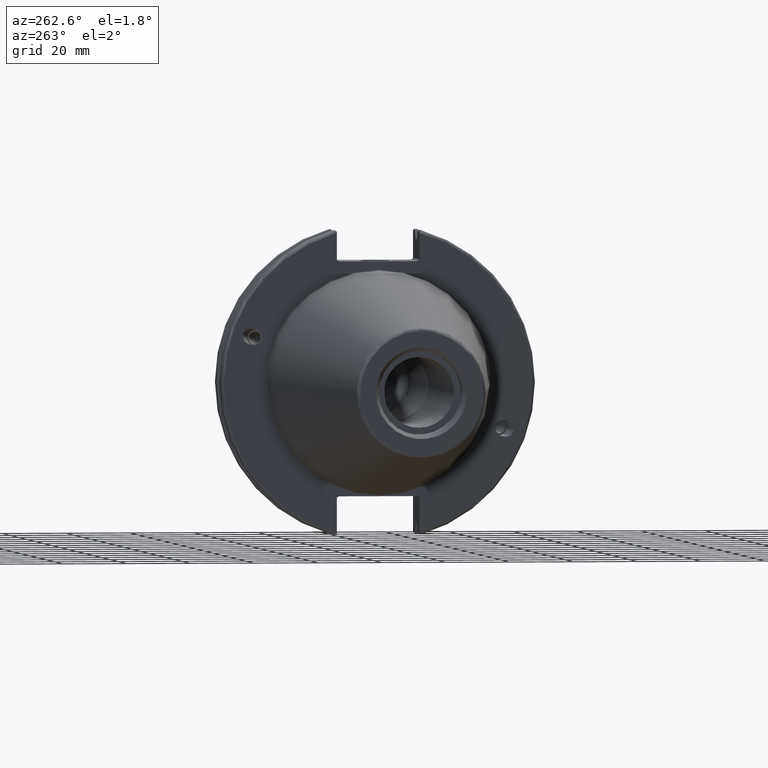
[diagram: clean part render]
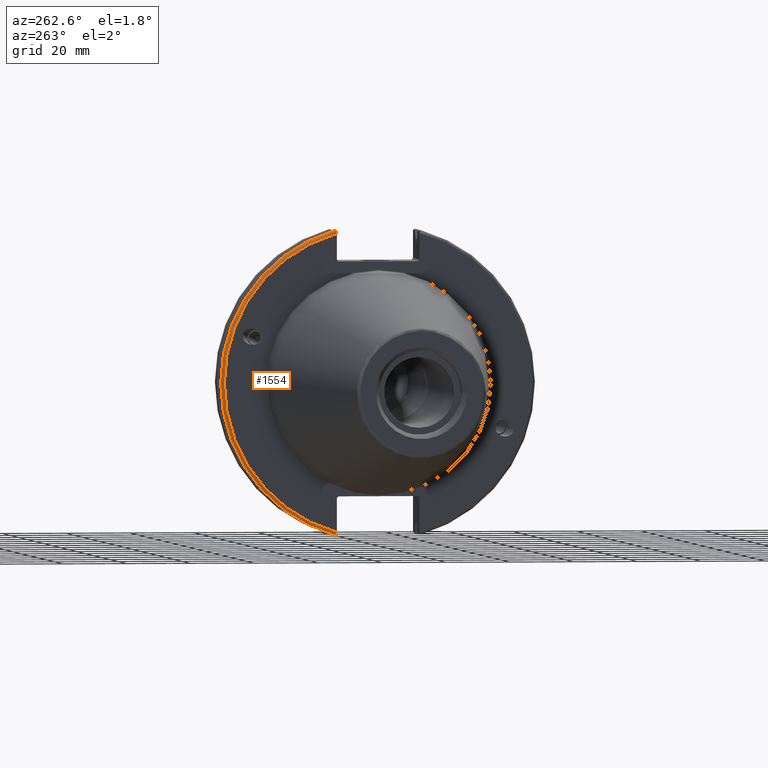
[diagram: same view with one face highlighted and labeled with its STEP entity id]
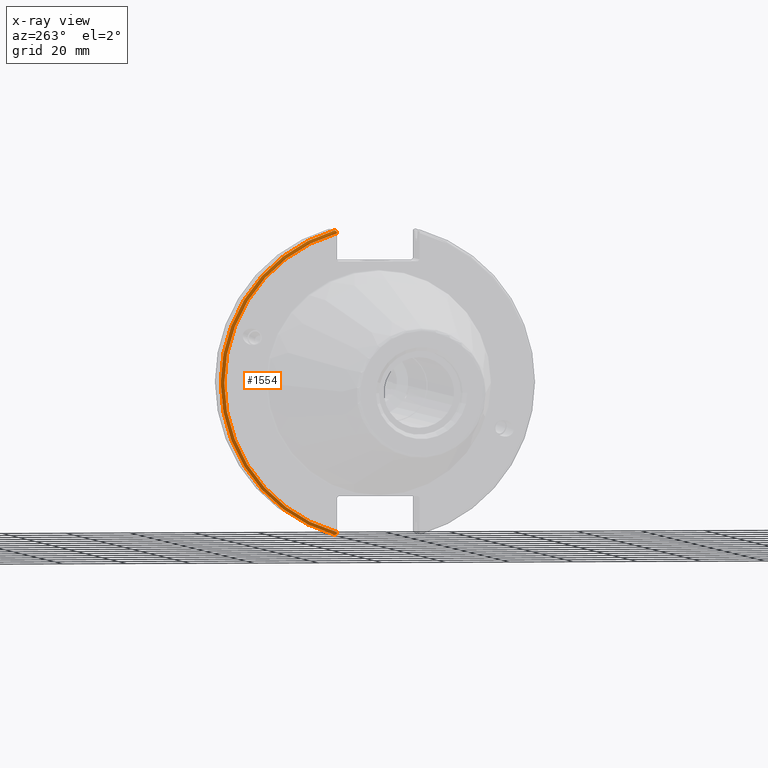
[diagram: x-ray of the same camera — body ghosted, the highlighted face saturated]
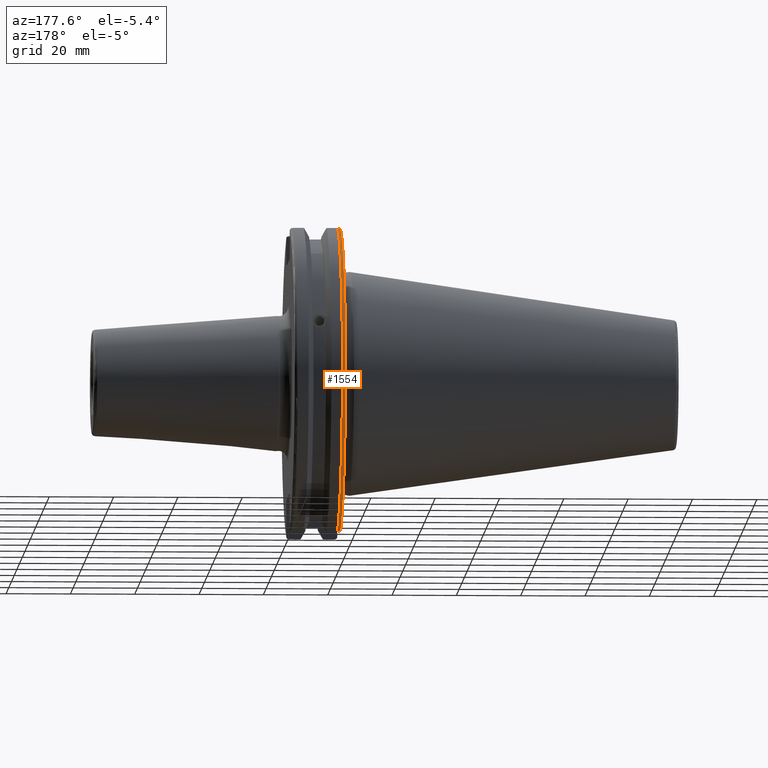
[diagram: same view with one face highlighted and labeled with its STEP entity id]
A machine part, auxiliary view. The second image highlights one B-rep face of the part: STEP entity #1554.
The next image is the same camera in x-ray: the body ghosted, the highlighted face saturated — about 0% of this face is hidden behind the body in this view.
A second angle (auxiliary view) of the same face is appended — the face is thin or edge-on in the first view.
In plain terms, the highlighted toroidal blend (fillet) surface has major radius 48.2125 mm and minor (blend) radius 1 mm.
Its self-contained STEP definition (entity closure, byte-faithful):
#57=B_SPLINE_CURVE_WITH_KNOTS('',3,(#2937,#2938,#2939,#2940,#2941,#2942),
 .UNSPECIFIED.,.F.,.F.,(4,2,4),(0.0976892167532858,0.112000071948292,0.150881870548587),
 .UNSPECIFIED.);
#66=B_SPLINE_CURVE_WITH_KNOTS('',3,(#3054,#3055,#3056,#3057,#3058,#3059,
#3060,#3061),.UNSPECIFIED.,.F.,.F.,(4,2,2,4),(-0.104075769062722,-0.0730268503455479,
-0.0343639873656265,0.),.UNSPECIFIED.);
#67=B_SPLINE_CURVE_WITH_KNOTS('',3,(#3064,#3065,#3066,#3067,#3068,#3069,
#3070,#3071),.UNSPECIFIED.,.F.,.F.,(4,2,2,4),(0.,0.0343639873656266,0.0730268503455482,
0.104075769062722),.UNSPECIFIED.);
#68=B_SPLINE_CURVE_WITH_KNOTS('',3,(#3072,#3073,#3074,#3075,#3076,#3077),
 .UNSPECIFIED.,.F.,.F.,(4,2,4),(0.452859340315923,0.491741138916218,0.506051994111224),
 .UNSPECIFIED.);
#111=TOROIDAL_SURFACE('',#1731,48.2125,1.);
#209=FACE_OUTER_BOUND('',#318,.T.);
#318=EDGE_LOOP('',(#1319,#1320,#1321,#1322,#1323,#1324));
#408=CIRCLE('',#1714,48.2125);
#414=CIRCLE('',#1732,49.2125);
#731=VERTEX_POINT('',#2875);
#732=VERTEX_POINT('',#2877);
#744=VERTEX_POINT('',#2936);
#760=VERTEX_POINT('',#3052);
#761=VERTEX_POINT('',#3053);
#762=VERTEX_POINT('',#3062);
#918=EDGE_CURVE('',#732,#731,#408,.T.);
#935=EDGE_CURVE('',#744,#732,#57,.T.);
#964=EDGE_CURVE('',#760,#761,#66,.T.);
#965=EDGE_CURVE('',#761,#762,#414,.T.);
#966=EDGE_CURVE('',#762,#744,#67,.T.);
#967=EDGE_CURVE('',#731,#760,#68,.T.);
#1319=ORIENTED_EDGE('',*,*,#964,.T.);
#1320=ORIENTED_EDGE('',*,*,#965,.T.);
#1321=ORIENTED_EDGE('',*,*,#966,.T.);
#1322=ORIENTED_EDGE('',*,*,#935,.T.);
#1323=ORIENTED_EDGE('',*,*,#918,.T.);
#1324=ORIENTED_EDGE('',*,*,#967,.T.);
#1554=ADVANCED_FACE('',(#209),#111,.T.);
#1714=AXIS2_PLACEMENT_3D('',#2878,#2044,#2045);
#1731=AXIS2_PLACEMENT_3D('',#3051,#2099,#2100);
#1732=AXIS2_PLACEMENT_3D('',#3063,#2101,#2102);
#2044=DIRECTION('center_axis',(1.,0.,0.));
#2045=DIRECTION('ref_axis',(0.,1.,-6.12323399573677E-17));
#2099=DIRECTION('center_axis',(1.,0.,0.));
#2100=DIRECTION('ref_axis',(0.,0.,-1.));
#2101=DIRECTION('center_axis',(-1.,0.,0.));
#2102=DIRECTION('ref_axis',(0.,1.,-6.12323399573677E-17));
#2875=CARTESIAN_POINT('',(3.175,12.95,46.4407434937254));
#2877=CARTESIAN_POINT('',(3.175,12.95,-46.4407434937254));
#2878=CARTESIAN_POINT('Origin',(3.175,0.,0.));
#2936=CARTESIAN_POINT('',(3.31949794294344,12.95,-46.9780755322918));
#2937=CARTESIAN_POINT('Ctrl Pts',(3.31949794294344,12.95,-46.9780755322918));
#2938=CARTESIAN_POINT('Ctrl Pts',(3.29341556483839,12.95,-46.9333752207329));
#2939=CARTESIAN_POINT('Ctrl Pts',(3.27115672912336,12.95,-46.887363294568));
#2940=CARTESIAN_POINT('Ctrl Pts',(3.20453530071253,12.95,-46.7230464903732));
#2941=CARTESIAN_POINT('Ctrl Pts',(3.175,12.95,-46.5703494890597));
#2942=CARTESIAN_POINT('Ctrl Pts',(3.175,12.95,-46.4407434937254));
#3051=CARTESIAN_POINT('Origin',(4.175,0.,0.));
#3052=CARTESIAN_POINT('',(3.31949794294344,12.95,46.9780755322918));
#3053=CARTESIAN_POINT('',(4.175,13.4317035994433,47.3440544806494));
#3054=CARTESIAN_POINT('Ctrl Pts',(3.31949794294344,12.95,46.9780755322918));
#3055=CARTESIAN_POINT('Ctrl Pts',(3.36785032278754,13.0300321736484,47.0388807469102));
#3056=CARTESIAN_POINT('Ctrl Pts',(3.43235971798504,13.1083611826073,47.0983919657547));
#3057=CARTESIAN_POINT('Ctrl Pts',(3.58507512107923,13.2478194810695,47.2043467509586));
#3058=CARTESIAN_POINT('Ctrl Pts',(3.70638116490965,13.3242014686233,47.2623787015413));
#3059=CARTESIAN_POINT('Ctrl Pts',(3.92661103245834,13.4067722493645,47.3251126473446));
#3060=CARTESIAN_POINT('Ctrl Pts',(4.06045337544791,13.4317035994433,47.3440544806494));
#3061=CARTESIAN_POINT('Ctrl Pts',(4.175,13.4317035994433,47.3440544806494));
#3062=CARTESIAN_POINT('',(4.175,13.4317035994433,-47.3440544806494));
#3063=CARTESIAN_POINT('Origin',(4.175,0.,0.));
#3064=CARTESIAN_POINT('Ctrl Pts',(4.175,13.4317035994433,-47.3440544806494));
#3065=CARTESIAN_POINT('Ctrl Pts',(4.06045337544791,13.4317035994433,-47.3440544806494));
#3066=CARTESIAN_POINT('Ctrl Pts',(3.92661103245834,13.4067722493645,-47.3251126473446));
#3067=CARTESIAN_POINT('Ctrl Pts',(3.70638116490964,13.3242014686232,-47.2623787015413));
#3068=CARTESIAN_POINT('Ctrl Pts',(3.58507512107923,13.2478194810695,-47.2043467509586));
#3069=CARTESIAN_POINT('Ctrl Pts',(3.43235971798504,13.1083611826073,-47.0983919657547));
#3070=CARTESIAN_POINT('Ctrl Pts',(3.36785032278754,13.0300321736484,-47.0388807469102));
#3071=CARTESIAN_POINT('Ctrl Pts',(3.31949794294344,12.95,-46.9780755322918));
#3072=CARTESIAN_POINT('Ctrl Pts',(3.175,12.95,46.4407434937254));
#3073=CARTESIAN_POINT('Ctrl Pts',(3.175,12.95,46.5703494890597));
#3074=CARTESIAN_POINT('Ctrl Pts',(3.20453530071253,12.95,46.7230464903732));
#3075=CARTESIAN_POINT('Ctrl Pts',(3.27115672912336,12.95,46.887363294568));
#3076=CARTESIAN_POINT('Ctrl Pts',(3.29341556483839,12.95,46.9333752207329));
#3077=CARTESIAN_POINT('Ctrl Pts',(3.31949794294344,12.95,46.9780755322918));